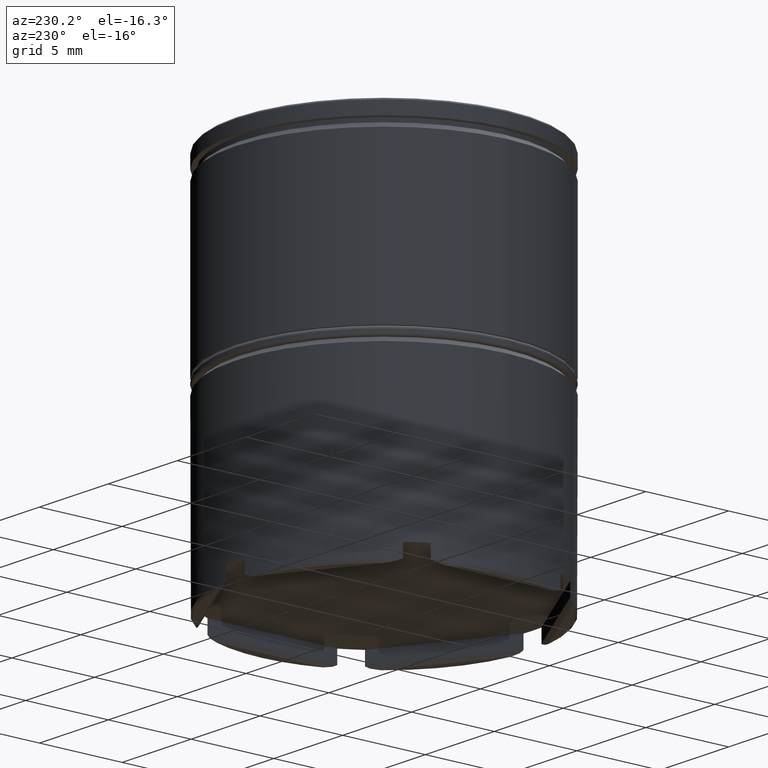
[diagram: clean part render]
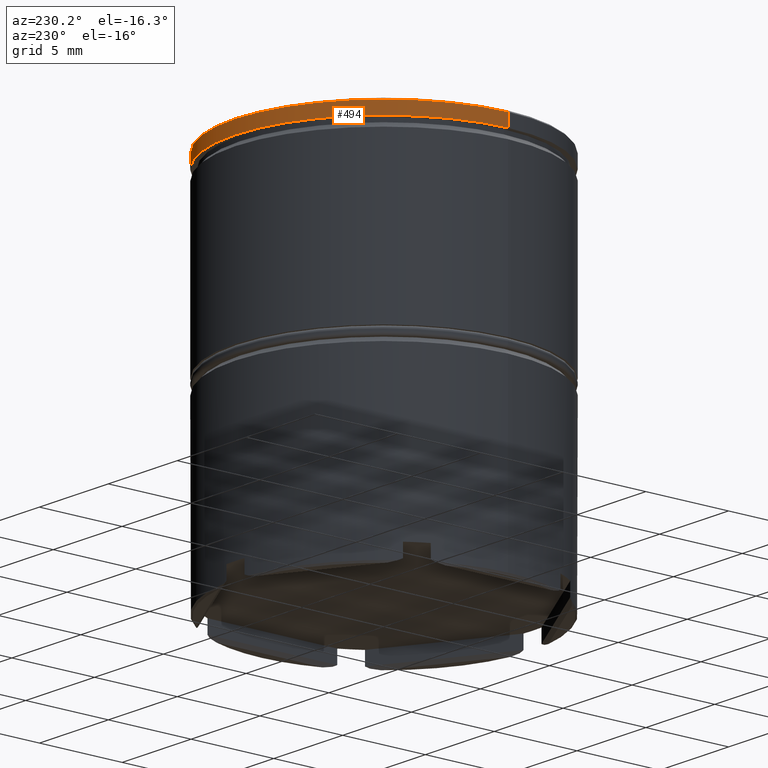
[diagram: same view with one face highlighted and labeled with its STEP entity id]
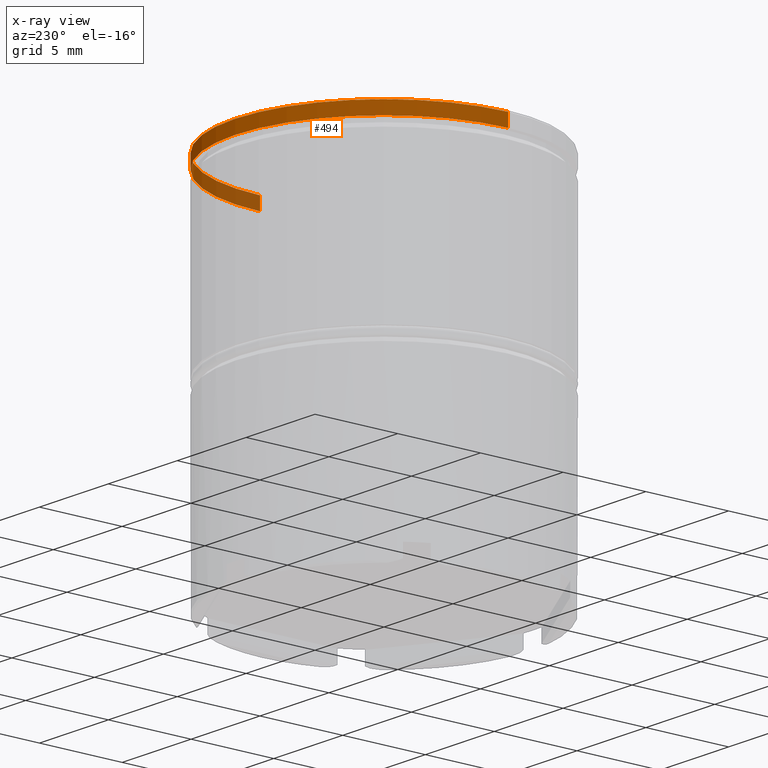
[diagram: x-ray of the same camera — body ghosted, the highlighted face saturated]
A machine part, auxiliary view. The second image highlights one B-rep face of the part: STEP entity #494.
The next image is the same camera in x-ray: the body ghosted, the highlighted face saturated — about 17% of this face is hidden behind the body in this view.
In plain terms, the highlighted cylindrical surface (partial cylindrical patch) has radius 9 mm, axis along (-0, -0, 1).
Its self-contained STEP definition (entity closure, byte-faithful):
#3 = VERTEX_POINT ( 'NONE', #485 ) ;
#83 = VERTEX_POINT ( 'NONE', #365 ) ;
#88 = DIRECTION ( 'NONE',  ( -0.000000000000000000, -0.000000000000000000, 1.000000000000000000 ) ) ;
#90 = EDGE_CURVE ( 'NONE', #1595, #3, #1240, .T. ) ;
#163 = CARTESIAN_POINT ( 'NONE',  ( 0.000000000000000000, 0.000000000000000000, 0.000000000000000000 ) ) ;
#292 = AXIS2_PLACEMENT_3D ( 'NONE', #408, #1391, #552 ) ;
#293 = CYLINDRICAL_SURFACE ( 'NONE', #1027, 9.000000000000000000 ) ;
#299 = EDGE_CURVE ( 'NONE', #3, #83, #1235, .T. ) ;
#355 = DIRECTION ( 'NONE',  ( -0.000000000000000000, -0.000000000000000000, 1.000000000000000000 ) ) ;
#365 = CARTESIAN_POINT ( 'NONE',  ( 9.000000000000000000, 0.000000000000000000, -0.09999999999999419076 ) ) ;
#393 = ORIENTED_EDGE ( 'NONE', *, *, #1103, .F. ) ;
#408 = CARTESIAN_POINT ( 'NONE',  ( 0.000000000000000000, 0.000000000000000000, -0.8749999999999998890 ) ) ;
#438 = LINE ( 'NONE', #934, #1263 ) ;
#485 = CARTESIAN_POINT ( 'NONE',  ( -9.000000000000000000, 1.102182119232617714E-15, -0.09999999999999419076 ) ) ;
#494 = ADVANCED_FACE ( 'NONE', ( #545 ), #293, .T. ) ;
#545 = FACE_OUTER_BOUND ( 'NONE', #1460, .T. ) ;
#552 = DIRECTION ( 'NONE',  ( 1.000000000000000000, 0.000000000000000000, 0.000000000000000000 ) ) ;
#587 = CARTESIAN_POINT ( 'NONE',  ( -9.000000000000000000, 1.102182119232617714E-15, -0.8749999999999998890 ) ) ;
#725 = CARTESIAN_POINT ( 'NONE',  ( -9.000000000000000000, 1.102182119232617714E-15, 0.000000000000000000 ) ) ;
#735 = VECTOR ( 'NONE', #355, 1000.000000000000000 ) ;
#934 = CARTESIAN_POINT ( 'NONE',  ( 9.000000000000000000, 0.000000000000000000, 0.000000000000000000 ) ) ;
#943 = ORIENTED_EDGE ( 'NONE', *, *, #299, .T. ) ;
#962 = EDGE_CURVE ( 'NONE', #1393, #1595, #1562, .T. ) ;
#1017 = CARTESIAN_POINT ( 'NONE',  ( 0.000000000000000000, 0.000000000000000000, -0.09999999999999419076 ) ) ;
#1023 = DIRECTION ( 'NONE',  ( 1.000000000000000000, 0.000000000000000000, 0.000000000000000000 ) ) ;
#1027 = AXIS2_PLACEMENT_3D ( 'NONE', #163, #1155, #1023 ) ;
#1042 = CARTESIAN_POINT ( 'NONE',  ( 9.000000000000000000, 0.000000000000000000, -0.8749999999999998890 ) ) ;
#1103 = EDGE_CURVE ( 'NONE', #1393, #83, #438, .T. ) ;
#1155 = DIRECTION ( 'NONE',  ( -0.000000000000000000, -0.000000000000000000, 1.000000000000000000 ) ) ;
#1221 = ORIENTED_EDGE ( 'NONE', *, *, #90, .T. ) ;
#1235 = CIRCLE ( 'NONE', #1586, 9.000000000000000000 ) ;
#1240 = LINE ( 'NONE', #725, #735 ) ;
#1263 = VECTOR ( 'NONE', #88, 1000.000000000000000 ) ;
#1391 = DIRECTION ( 'NONE',  ( -0.000000000000000000, -0.000000000000000000, 1.000000000000000000 ) ) ;
#1393 = VERTEX_POINT ( 'NONE', #1042 ) ;
#1460 = EDGE_LOOP ( 'NONE', ( #1527, #1221, #943, #393 ) ) ;
#1519 = DIRECTION ( 'NONE',  ( 1.000000000000000000, 0.000000000000000000, 0.000000000000000000 ) ) ;
#1527 = ORIENTED_EDGE ( 'NONE', *, *, #962, .T. ) ;
#1544 = DIRECTION ( 'NONE',  ( 0.000000000000000000, 0.000000000000000000, -1.000000000000000000 ) ) ;
#1562 = CIRCLE ( 'NONE', #292, 9.000000000000000000 ) ;
#1586 = AXIS2_PLACEMENT_3D ( 'NONE', #1017, #1544, #1519 ) ;
#1595 = VERTEX_POINT ( 'NONE', #587 ) ;